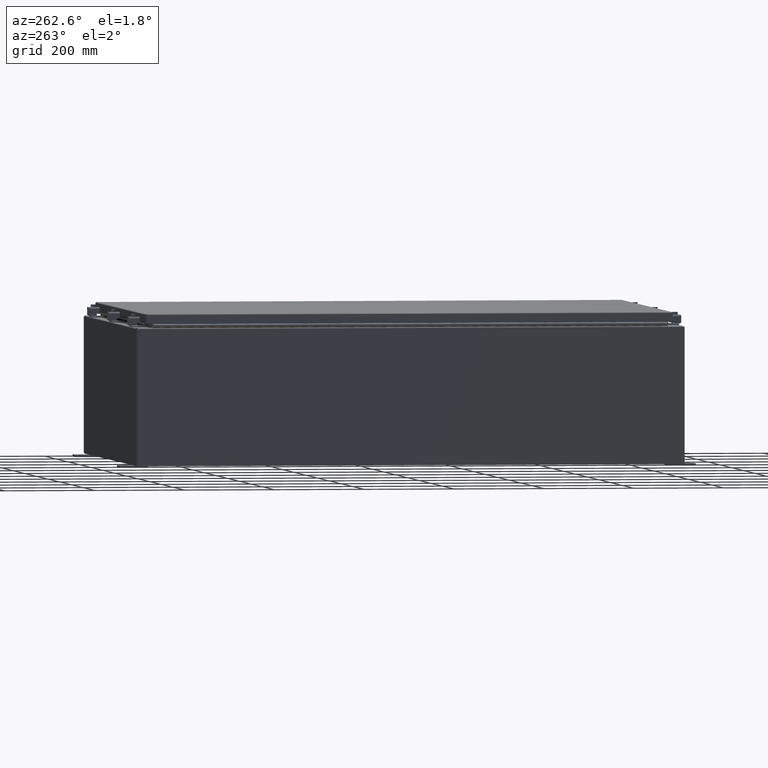
[diagram: clean part render]
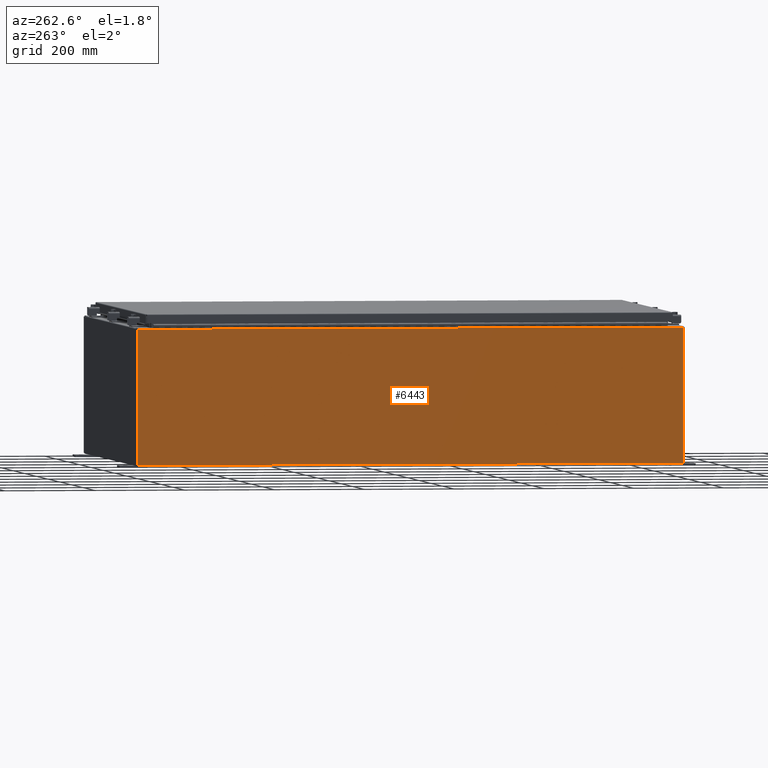
[diagram: same view with one face highlighted and labeled with its STEP entity id]
A machine part, auxiliary view. The second image highlights one B-rep face of the part: STEP entity #6443.
In plain terms, the highlighted planar face has unit normal (1, 0, 0).
Its self-contained STEP definition (entity closure, byte-faithful):
#885 = CARTESIAN_POINT ( 'NONE',  ( -18.00000000000004600, 23.92529999999998900, 11.83760000000000200 ) ) ;
#1083 = EDGE_LOOP ( 'NONE', ( #36009, #50985, #5650, #23000 ) ) ;
#4693 = LINE ( 'NONE', #43403, #47648 ) ;
#5027 = EDGE_CURVE ( 'NONE', #47048, #21073, #41557, .T. ) ;
#5650 = ORIENTED_EDGE ( 'NONE', *, *, #5027, .F. ) ;
#6443 = ADVANCED_FACE ( 'NONE', ( #30272 ), #24585, .F. ) ;
#9448 = VECTOR ( 'NONE', #9617, 39.37007874015748100 ) ;
#9617 = DIRECTION ( 'NONE',  ( 3.482016343714355500E-015, 0.0000000000000000000, -1.000000000000000000 ) ) ;
#9629 = VERTEX_POINT ( 'NONE', #25414 ) ;
#13781 = CARTESIAN_POINT ( 'NONE',  ( -18.00000000000000400, 23.92529999999998900, -6.293710784286998800E-014 ) ) ;
#17203 = DIRECTION ( 'NONE',  ( -0.0000000000000000000, 1.000000000000000000, -0.0000000000000000000 ) ) ;
#17729 = CARTESIAN_POINT ( 'NONE',  ( -18.00000000000000400, 23.92529999999998900, 0.01299999999999984700 ) ) ;
#20368 = AXIS2_PLACEMENT_3D ( 'NONE', #25774, #24520, #24179 ) ;
#20440 = LINE ( 'NONE', #13781, #9448 ) ;
#20840 = DIRECTION ( 'NONE',  ( -3.482016343714355500E-015, 0.0000000000000000000, 1.000000000000000000 ) ) ;
#21012 = CARTESIAN_POINT ( 'NONE',  ( -18.00000000000000400, -23.92529999999999600, -6.293710784286998800E-014 ) ) ;
#21073 = VERTEX_POINT ( 'NONE', #46086 ) ;
#22190 = VECTOR ( 'NONE', #20840, 39.37007874015748100 ) ;
#23000 = ORIENTED_EDGE ( 'NONE', *, *, #39340, .T. ) ;
#24179 = DIRECTION ( 'NONE',  ( 3.482016343714355100E-015, 0.0000000000000000000, -1.000000000000000000 ) ) ;
#24520 = DIRECTION ( 'NONE',  ( 1.000000000000000000, 0.0000000000000000000, 3.482016343714355100E-015 ) ) ;
#24585 = PLANE ( 'NONE',  #20368 ) ;
#25414 = CARTESIAN_POINT ( 'NONE',  ( -18.00000000000004600, -23.92529999999998600, 11.83760000000000200 ) ) ;
#25774 = CARTESIAN_POINT ( 'NONE',  ( -18.00000000000000400, 0.0000000000000000000, -6.293710784286998800E-014 ) ) ;
#30272 = FACE_OUTER_BOUND ( 'NONE', #1083, .T. ) ;
#34572 = LINE ( 'NONE', #21012, #22190 ) ;
#34666 = CARTESIAN_POINT ( 'NONE',  ( -18.00000000000000400, -23.92529999999998600, 0.01299999999999984700 ) ) ;
#36009 = ORIENTED_EDGE ( 'NONE', *, *, #39485, .T. ) ;
#37754 = EDGE_CURVE ( 'NONE', #50442, #21073, #20440, .T. ) ;
#39340 = EDGE_CURVE ( 'NONE', #47048, #9629, #34572, .T. ) ;
#39485 = EDGE_CURVE ( 'NONE', #9629, #50442, #4693, .T. ) ;
#41557 = LINE ( 'NONE', #17729, #53985 ) ;
#43403 = CARTESIAN_POINT ( 'NONE',  ( -18.00000000000004600, -23.92529999999998900, 11.83760000000000200 ) ) ;
#46086 = CARTESIAN_POINT ( 'NONE',  ( -18.00000000000000400, 23.92529999999998900, 0.01299999999999984700 ) ) ;
#47048 = VERTEX_POINT ( 'NONE', #34666 ) ;
#47623 = DIRECTION ( 'NONE',  ( 0.0000000000000000000, 1.000000000000000000, 0.0000000000000000000 ) ) ;
#47648 = VECTOR ( 'NONE', #47623, 39.37007874015748100 ) ;
#50442 = VERTEX_POINT ( 'NONE', #885 ) ;
#50985 = ORIENTED_EDGE ( 'NONE', *, *, #37754, .T. ) ;
#53985 = VECTOR ( 'NONE', #17203, 39.37007874015748100 ) ;